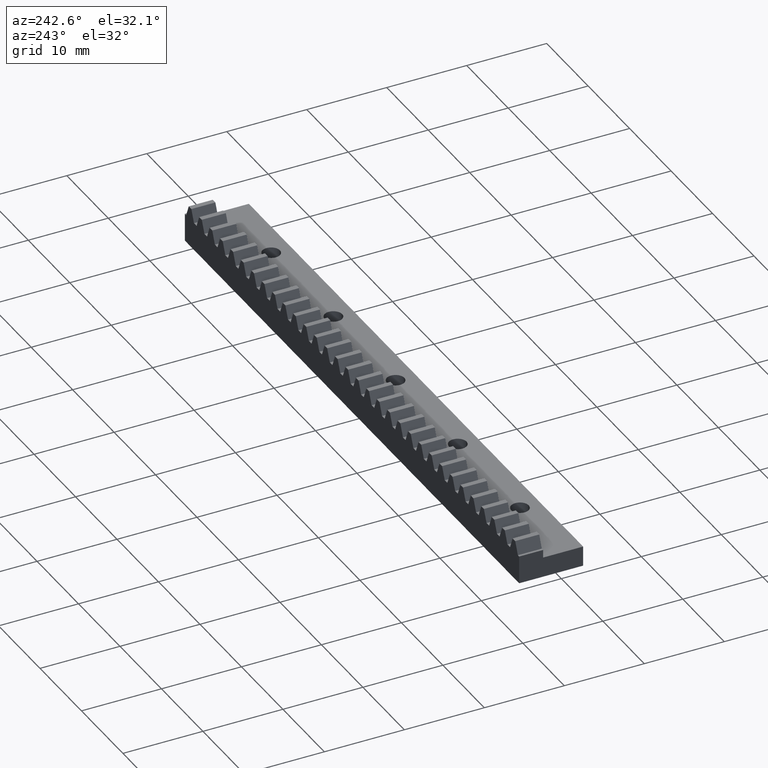
[diagram: clean part render]
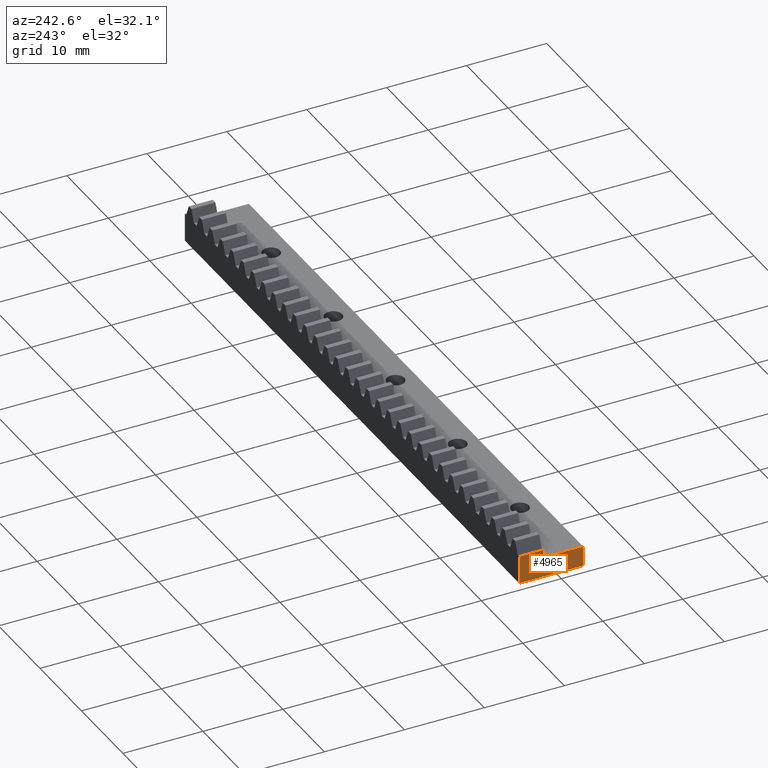
[diagram: same view with one face highlighted and labeled with its STEP entity id]
A machine part, auxiliary view. The second image highlights one B-rep face of the part: STEP entity #4965.
In plain terms, the highlighted face is a freeform B-spline surface patch.
Its self-contained STEP definition (entity closure, byte-faithful):
#979=CARTESIAN_POINT('',(-40.430000000000000,5.500000000000000,3.500000000000000));
#980=VERTEX_POINT('',#979);
#981=CARTESIAN_POINT('',(-40.430000000000000,5.500000000000000,0.0));
#982=VERTEX_POINT('',#981);
#983=CARTESIAN_POINT('',(-40.430000000000000,5.500000000000000,3.500000000000000));
#984=CARTESIAN_POINT('',(-40.430000000000000,5.500000000000000,0.0));
#985=QUASI_UNIFORM_CURVE('',1,(#983,#984),.UNSPECIFIED.,.F.,.U.);
#986=EDGE_CURVE('',#980,#982,#985,.T.);
#1913=CARTESIAN_POINT('',(-40.430000000000000,2.499999999999945,3.500000000000000));
#1914=VERTEX_POINT('',#1913);
#1926=CARTESIAN_POINT('',(-40.430000000000000,5.500000000000000,3.500000000000000));
#1927=CARTESIAN_POINT('',(-40.430000000000000,2.499999999999945,3.500000000000000));
#1928=QUASI_UNIFORM_CURVE('',1,(#1926,#1927),.UNSPECIFIED.,.F.,.U.);
#1929=EDGE_CURVE('',#980,#1914,#1928,.T.);
#4755=CARTESIAN_POINT('',(-40.430000000000000,2.499999999999915,2.499999999999901));
#4756=VERTEX_POINT('',#4755);
#4898=CARTESIAN_POINT('',(-40.430000000000000,2.499999999999945,3.500000000000000));
#4899=CARTESIAN_POINT('',(-40.430000000000000,2.499999999999915,2.499999999999901));
#4900=QUASI_UNIFORM_CURVE('',1,(#4898,#4899),.UNSPECIFIED.,.F.,.U.);
#4901=EDGE_CURVE('',#1914,#4756,#4900,.T.);
#4936=CARTESIAN_POINT('',(-40.430000000000000,-2.899599984494537,3.674824993216321));
#4937=CARTESIAN_POINT('',(-40.430000000000000,5.899600199071173,3.674824993216321));
#4938=CARTESIAN_POINT('',(-40.430000000000000,-2.899599984494537,-0.174825087093637));
#4939=CARTESIAN_POINT('',(-40.430000000000000,5.899600199071173,-0.174825087093637));
#4940=B_SPLINE_SURFACE_WITH_KNOTS('',1,1,((#4936,#4938),(#4937,#4939)),.UNSPECIFIED.,.F.,.F.,.U.,(2,2),(2,2),(0.0,8.799200183565711),(0.0,3.849650080309957),.UNSPECIFIED.);
#4941=CARTESIAN_POINT('',(-40.430000000000000,-2.500000000000085,-1.530758E-016));
#4942=VERTEX_POINT('',#4941);
#4943=CARTESIAN_POINT('',(-40.430000000000000,-2.500000000000085,2.499999999999901));
#4944=VERTEX_POINT('',#4943);
#4945=CARTESIAN_POINT('',(-40.430000000000000,-2.500000000000085,-1.530758E-016));
#4946=CARTESIAN_POINT('',(-40.430000000000000,-2.500000000000085,2.499999999999901));
#4947=QUASI_UNIFORM_CURVE('',1,(#4945,#4946),.UNSPECIFIED.,.F.,.U.);
#4948=EDGE_CURVE('',#4942,#4944,#4947,.T.);
#4949=ORIENTED_EDGE('',*,*,#4948,.T.);
#4950=CARTESIAN_POINT('',(-40.430000000000000,-2.500000000000085,2.499999999999901));
#4951=CARTESIAN_POINT('',(-40.430000000000000,2.499999999999915,2.499999999999901));
#4952=QUASI_UNIFORM_CURVE('',1,(#4950,#4951),.UNSPECIFIED.,.F.,.U.);
#4953=EDGE_CURVE('',#4944,#4756,#4952,.T.);
#4954=ORIENTED_EDGE('',*,*,#4953,.T.);
#4955=ORIENTED_EDGE('',*,*,#4901,.F.);
#4956=ORIENTED_EDGE('',*,*,#1929,.F.);
#4957=ORIENTED_EDGE('',*,*,#986,.T.);
#4958=CARTESIAN_POINT('',(-40.430000000000000,5.500000000000000,0.0));
#4959=CARTESIAN_POINT('',(-40.430000000000000,-2.500000000000085,-1.530758E-016));
#4960=QUASI_UNIFORM_CURVE('',1,(#4958,#4959),.UNSPECIFIED.,.F.,.U.);
#4961=EDGE_CURVE('',#982,#4942,#4960,.T.);
#4962=ORIENTED_EDGE('',*,*,#4961,.T.);
#4963=EDGE_LOOP('',(#4949,#4954,#4955,#4956,#4957,#4962));
#4964=FACE_OUTER_BOUND('',#4963,.T.);
#4965=ADVANCED_FACE('',(#4964),#4940,.T.);